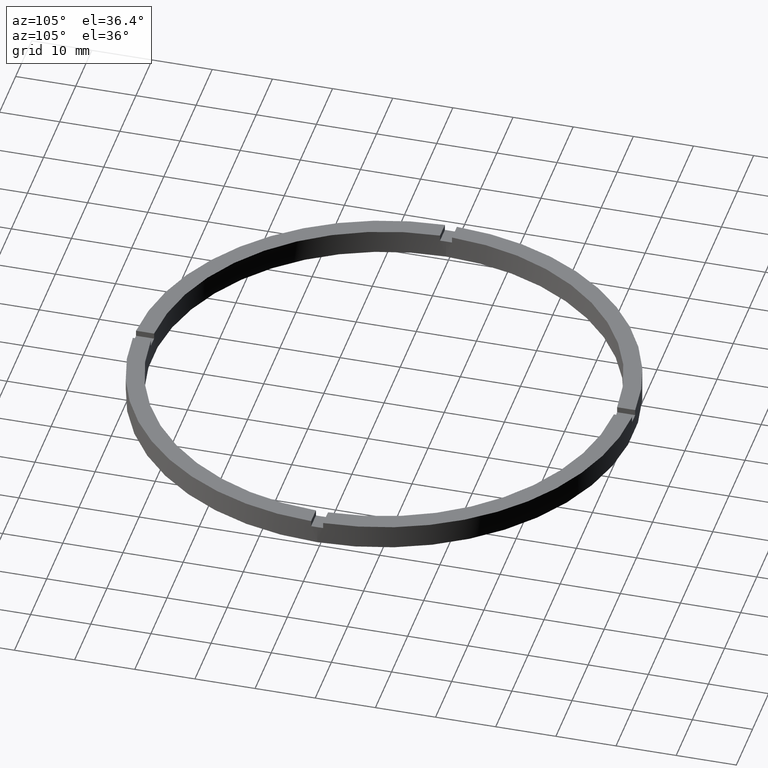
[diagram: clean part render]
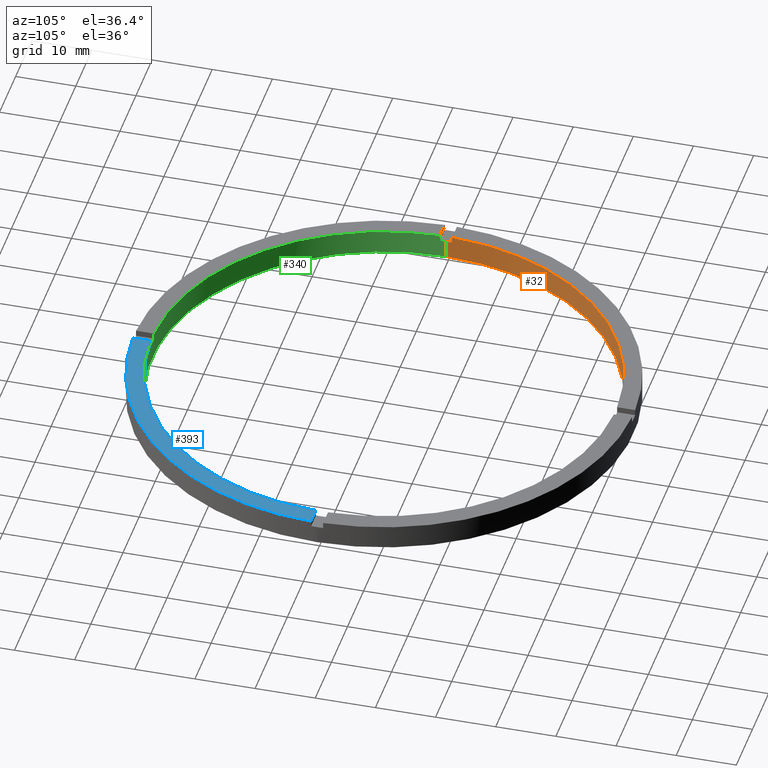
[diagram: same view with three faces highlighted in distinct colors, each labeled with its STEP entity id]
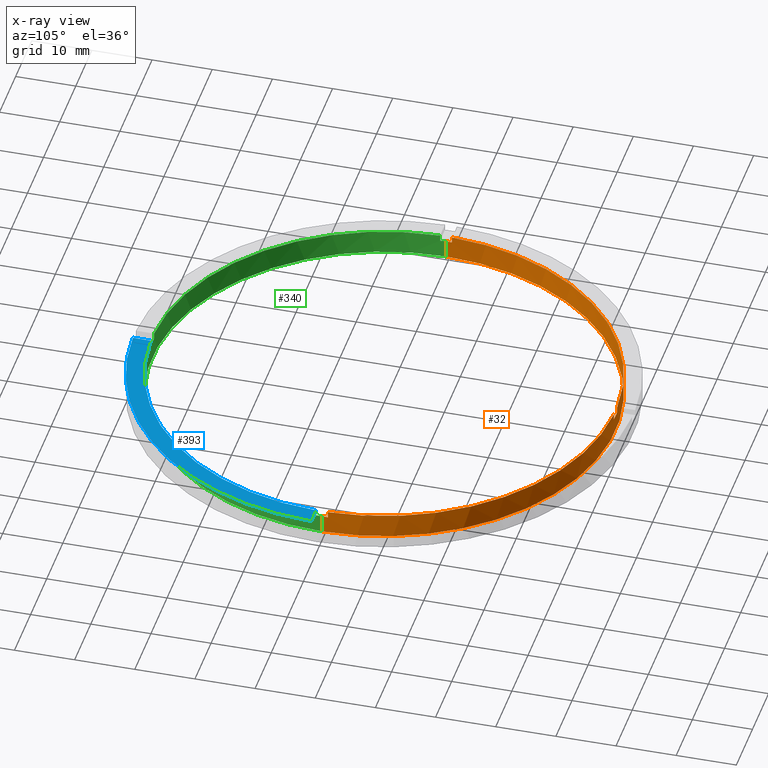
[diagram: x-ray of the same camera — body ghosted, the three highlighted faces saturated]
A machine part, auxiliary view with three faces highlighted in distinct colors.
The next image is the same camera in x-ray (body ghosted, the three faces saturated) — at least one of them is partly hidden behind the body in this view.
Their STEP definitions:

[orange] entity #32 — the highlighted cylindrical surface (partial cylindrical patch) has radius 38.5 mm, axis along (-0, -0, -1).
#7 = DIRECTION ( 'NONE',  ( -0.000000000000000000, -0.000000000000000000, -1.000000000000000000 ) ) ;
#8 = AXIS2_PLACEMENT_3D ( 'NONE', #73, #270, #739 ) ;
#18 = AXIS2_PLACEMENT_3D ( 'NONE', #46, #301, #646 ) ;
#26 = CARTESIAN_POINT ( 'NONE',  ( 38.50000000000000000, 4.714890176717309515E-15, 4.000000000000000000 ) ) ;
#32 = ADVANCED_FACE ( 'NONE', ( #428 ), #172, .F. ) ;
#34 = VERTEX_POINT ( 'NONE', #128 ) ;
#46 = CARTESIAN_POINT ( 'NONE',  ( 0.000000000000000000, 0.000000000000000000, 3.000000000000000000 ) ) ;
#48 = EDGE_CURVE ( 'NONE', #556, #34, #173, .T. ) ;
#60 = CARTESIAN_POINT ( 'NONE',  ( 0.000000000000000000, 0.000000000000000000, 0.000000000000000000 ) ) ;
#61 = CARTESIAN_POINT ( 'NONE',  ( 38.48701079585163853, 0.9999999999998432365, 3.000000000000000000 ) ) ;
#62 = CARTESIAN_POINT ( 'NONE',  ( -38.48701079585163143, 0.9999999999999715783, 4.000000000000000000 ) ) ;
#69 = EDGE_CURVE ( 'NONE', #554, #529, #684, .T. ) ;
#73 = CARTESIAN_POINT ( 'NONE',  ( 0.000000000000000000, 0.000000000000000000, 3.000000000000000000 ) ) ;
#75 = EDGE_CURVE ( 'NONE', #556, #297, #691, .T. ) ;
#78 = DIRECTION ( 'NONE',  ( -1.000000000000000000, 0.000000000000000000, 0.000000000000000000 ) ) ;
#124 = EDGE_CURVE ( 'NONE', #554, #300, #204, .T. ) ;
#128 = CARTESIAN_POINT ( 'NONE',  ( 38.50000000000000000, 4.714890176717309515E-15, 0.000000000000000000 ) ) ;
#129 = CARTESIAN_POINT ( 'NONE',  ( 38.50000000000000000, 4.714890176717309515E-15, 3.000000000000000000 ) ) ;
#136 = DIRECTION ( 'NONE',  ( 0.000000000000000000, 0.000000000000000000, 1.000000000000000000 ) ) ;
#138 = EDGE_CURVE ( 'NONE', #34, #290, #453, .T. ) ;
#142 = CARTESIAN_POINT ( 'NONE',  ( 0.9999999999999742428, 38.48701079585163143, 4.000000000000000000 ) ) ;
#145 = AXIS2_PLACEMENT_3D ( 'NONE', #60, #480, #303 ) ;
#154 = ORIENTED_EDGE ( 'NONE', *, *, #473, .F. ) ;
#172 = CYLINDRICAL_SURFACE ( 'NONE', #657, 38.50000000000000000 ) ;
#173 = LINE ( 'NONE', #26, #408 ) ;
#186 = CARTESIAN_POINT ( 'NONE',  ( -38.48701079585163143, 0.9999999999999715783, 4.000000000000000000 ) ) ;
#187 = VECTOR ( 'NONE', #582, 1000.000000000000000 ) ;
#189 = CARTESIAN_POINT ( 'NONE',  ( 38.48701079585163853, 0.9999999999998432365, 4.000000000000000000 ) ) ;
#196 = EDGE_CURVE ( 'NONE', #525, #300, #715, .T. ) ;
#198 = ORIENTED_EDGE ( 'NONE', *, *, #561, .T. ) ;
#204 = CIRCLE ( 'NONE', #424, 38.50000000000000000 ) ;
#213 = VECTOR ( 'NONE', #7, 1000.000000000000000 ) ;
#234 = ORIENTED_EDGE ( 'NONE', *, *, #138, .F. ) ;
#243 = CIRCLE ( 'NONE', #18, 38.50000000000000000 ) ;
#252 = ORIENTED_EDGE ( 'NONE', *, *, #75, .T. ) ;
#253 = ORIENTED_EDGE ( 'NONE', *, *, #124, .T. ) ;
#261 = VERTEX_POINT ( 'NONE', #474 ) ;
#263 = ORIENTED_EDGE ( 'NONE', *, *, #48, .F. ) ;
#270 = DIRECTION ( 'NONE',  ( 0.000000000000000000, 0.000000000000000000, 1.000000000000000000 ) ) ;
#277 = VERTEX_POINT ( 'NONE', #637 ) ;
#279 = DIRECTION ( 'NONE',  ( 0.000000000000000000, 0.000000000000000000, 1.000000000000000000 ) ) ;
#290 = VERTEX_POINT ( 'NONE', #392 ) ;
#292 = CARTESIAN_POINT ( 'NONE',  ( 0.9999999999999742428, 38.48701079585163143, 4.000000000000000000 ) ) ;
#296 = CARTESIAN_POINT ( 'NONE',  ( -1.000000000000025757, 38.48701079585163143, 3.000000000000000000 ) ) ;
#297 = VERTEX_POINT ( 'NONE', #61 ) ;
#300 = VERTEX_POINT ( 'NONE', #296 ) ;
#301 = DIRECTION ( 'NONE',  ( 0.000000000000000000, 0.000000000000000000, 1.000000000000000000 ) ) ;
#303 = DIRECTION ( 'NONE',  ( 1.000000000000000000, 0.000000000000000000, 0.000000000000000000 ) ) ;
#305 = CARTESIAN_POINT ( 'NONE',  ( -1.000000000000025757, 38.48701079585163143, 4.000000000000000000 ) ) ;
#307 = CARTESIAN_POINT ( 'NONE',  ( 0.000000000000000000, 0.000000000000000000, 3.000000000000000000 ) ) ;
#311 = CARTESIAN_POINT ( 'NONE',  ( 0.000000000000000000, 0.000000000000000000, 4.000000000000000000 ) ) ;
#323 = DIRECTION ( 'NONE',  ( 1.000000000000000000, 0.000000000000000000, 0.000000000000000000 ) ) ;
#325 = DIRECTION ( 'NONE',  ( 1.000000000000000000, 0.000000000000000000, 0.000000000000000000 ) ) ;
#326 = AXIS2_PLACEMENT_3D ( 'NONE', #445, #279, #323 ) ;
#347 = VECTOR ( 'NONE', #593, 1000.000000000000000 ) ;
#381 = AXIS2_PLACEMENT_3D ( 'NONE', #764, #136, #325 ) ;
#391 = DIRECTION ( 'NONE',  ( 1.000000000000000000, 0.000000000000000000, 0.000000000000000000 ) ) ;
#392 = CARTESIAN_POINT ( 'NONE',  ( -38.50000000000000000, 0.000000000000000000, 0.000000000000000000 ) ) ;
#408 = VECTOR ( 'NONE', #760, 1000.000000000000000 ) ;
#409 = VECTOR ( 'NONE', #728, 1000.000000000000000 ) ;
#419 = ORIENTED_EDGE ( 'NONE', *, *, #682, .F. ) ;
#424 = AXIS2_PLACEMENT_3D ( 'NONE', #307, #710, #391 ) ;
#428 = FACE_OUTER_BOUND ( 'NONE', #579, .T. ) ;
#445 = CARTESIAN_POINT ( 'NONE',  ( 0.000000000000000000, 0.000000000000000000, 4.000000000000000000 ) ) ;
#453 = CIRCLE ( 'NONE', #145, 38.50000000000000000 ) ;
#472 = LINE ( 'NONE', #62, #347 ) ;
#473 = EDGE_CURVE ( 'NONE', #277, #297, #705, .T. ) ;
#474 = CARTESIAN_POINT ( 'NONE',  ( -38.50000000000000000, 0.000000000000000000, 3.000000000000000000 ) ) ;
#476 = ORIENTED_EDGE ( 'NONE', *, *, #606, .T. ) ;
#480 = DIRECTION ( 'NONE',  ( 0.000000000000000000, 0.000000000000000000, 1.000000000000000000 ) ) ;
#492 = CIRCLE ( 'NONE', #326, 38.50000000000000000 ) ;
#502 = LINE ( 'NONE', #718, #766 ) ;
#524 = CARTESIAN_POINT ( 'NONE',  ( 0.9999999999999742428, 38.48701079585163143, 3.000000000000000000 ) ) ;
#525 = VERTEX_POINT ( 'NONE', #664 ) ;
#529 = VERTEX_POINT ( 'NONE', #292 ) ;
#532 = CARTESIAN_POINT ( 'NONE',  ( -38.48701079585163143, 0.9999999999999715783, 3.000000000000000000 ) ) ;
#549 = VERTEX_POINT ( 'NONE', #532 ) ;
#554 = VERTEX_POINT ( 'NONE', #524 ) ;
#556 = VERTEX_POINT ( 'NONE', #129 ) ;
#561 = EDGE_CURVE ( 'NONE', #525, #754, #492, .T. ) ;
#562 = ORIENTED_EDGE ( 'NONE', *, *, #653, .T. ) ;
#579 = EDGE_LOOP ( 'NONE', ( #263, #252, #154, #773, #717, #253, #782, #198, #419, #476, #562, #234 ) ) ;
#580 = DIRECTION ( 'NONE',  ( -0.000000000000000000, -0.000000000000000000, -1.000000000000000000 ) ) ;
#582 = DIRECTION ( 'NONE',  ( -0.000000000000000000, -0.000000000000000000, -1.000000000000000000 ) ) ;
#593 = DIRECTION ( 'NONE',  ( 0.000000000000000000, 0.000000000000000000, 1.000000000000000000 ) ) ;
#603 = EDGE_CURVE ( 'NONE', #277, #529, #755, .T. ) ;
#606 = EDGE_CURVE ( 'NONE', #549, #261, #243, .T. ) ;
#637 = CARTESIAN_POINT ( 'NONE',  ( 38.48701079585163853, 0.9999999999998432365, 4.000000000000000000 ) ) ;
#646 = DIRECTION ( 'NONE',  ( 1.000000000000000000, 0.000000000000000000, 0.000000000000000000 ) ) ;
#653 = EDGE_CURVE ( 'NONE', #261, #290, #502, .T. ) ;
#657 = AXIS2_PLACEMENT_3D ( 'NONE', #311, #662, #78 ) ;
#662 = DIRECTION ( 'NONE',  ( -0.000000000000000000, -0.000000000000000000, -1.000000000000000000 ) ) ;
#664 = CARTESIAN_POINT ( 'NONE',  ( -1.000000000000025757, 38.48701079585163143, 4.000000000000000000 ) ) ;
#682 = EDGE_CURVE ( 'NONE', #549, #754, #472, .T. ) ;
#684 = LINE ( 'NONE', #142, #409 ) ;
#691 = CIRCLE ( 'NONE', #8, 38.50000000000000000 ) ;
#705 = LINE ( 'NONE', #189, #187 ) ;
#710 = DIRECTION ( 'NONE',  ( 0.000000000000000000, -0.000000000000000000, 1.000000000000000000 ) ) ;
#715 = LINE ( 'NONE', #305, #213 ) ;
#717 = ORIENTED_EDGE ( 'NONE', *, *, #69, .F. ) ;
#718 = CARTESIAN_POINT ( 'NONE',  ( -38.50000000000000000, 0.000000000000000000, 4.000000000000000000 ) ) ;
#728 = DIRECTION ( 'NONE',  ( 0.000000000000000000, 0.000000000000000000, 1.000000000000000000 ) ) ;
#739 = DIRECTION ( 'NONE',  ( 1.000000000000000000, 0.000000000000000000, 0.000000000000000000 ) ) ;
#754 = VERTEX_POINT ( 'NONE', #186 ) ;
#755 = CIRCLE ( 'NONE', #381, 38.50000000000000000 ) ;
#760 = DIRECTION ( 'NONE',  ( -0.000000000000000000, -0.000000000000000000, -1.000000000000000000 ) ) ;
#764 = CARTESIAN_POINT ( 'NONE',  ( 0.000000000000000000, 0.000000000000000000, 4.000000000000000000 ) ) ;
#766 = VECTOR ( 'NONE', #580, 1000.000000000000000 ) ;
#773 = ORIENTED_EDGE ( 'NONE', *, *, #603, .T. ) ;
#782 = ORIENTED_EDGE ( 'NONE', *, *, #196, .F. ) ;

[blue] entity #393 — the highlighted planar face has unit normal (0, 0, 1).
#40 = CARTESIAN_POINT ( 'NONE',  ( 0.9999999999998406830, -38.48701079585163853, 4.000000000000000000 ) ) ;
#55 = CARTESIAN_POINT ( 'NONE',  ( 0.000000000000000000, 0.000000000000000000, 4.000000000000000000 ) ) ;
#125 = DIRECTION ( 'NONE',  ( 1.000000000000000000, 0.000000000000000000, -0.000000000000000000 ) ) ;
#146 = DIRECTION ( 'NONE',  ( 0.000000000000000000, 0.000000000000000000, 1.000000000000000000 ) ) ;
#151 = CARTESIAN_POINT ( 'NONE',  ( 38.48701079585163143, -1.000000000000156763, 4.000000000000000000 ) ) ;
#158 = ORIENTED_EDGE ( 'NONE', *, *, #546, .F. ) ;
#191 = EDGE_CURVE ( 'NONE', #527, #547, #450, .T. ) ;
#205 = CIRCLE ( 'NONE', #609, 41.50000000000000000 ) ;
#230 = CIRCLE ( 'NONE', #652, 38.50000000000000000 ) ;
#255 = DIRECTION ( 'NONE',  ( -1.301042606982605074E-16, 1.000000000000000000, -0.000000000000000000 ) ) ;
#287 = EDGE_LOOP ( 'NONE', ( #560, #158, #695, #405 ) ) ;
#312 = CARTESIAN_POINT ( 'NONE',  ( 31.49999999999999289, -1.000000000000157430, 4.000000000000000000 ) ) ;
#332 = CARTESIAN_POINT ( 'NONE',  ( 0.9999999999998411271, -41.48795005781800427, 4.000000000000000000 ) ) ;
#346 = EDGE_CURVE ( 'NONE', #527, #555, #205, .T. ) ;
#383 = DIRECTION ( 'NONE',  ( 0.000000000000000000, 0.000000000000000000, 1.000000000000000000 ) ) ;
#393 = ADVANCED_FACE ( 'NONE', ( #704 ), #685, .T. ) ;
#396 = EDGE_CURVE ( 'NONE', #776, #555, #463, .T. ) ;
#405 = ORIENTED_EDGE ( 'NONE', *, *, #346, .T. ) ;
#425 = DIRECTION ( 'NONE',  ( 0.000000000000000000, 0.000000000000000000, 1.000000000000000000 ) ) ;
#433 = DIRECTION ( 'NONE',  ( 1.000000000000000000, 0.000000000000000000, 0.000000000000000000 ) ) ;
#450 = LINE ( 'NONE', #569, #741 ) ;
#463 = LINE ( 'NONE', #312, #720 ) ;
#527 = VERTEX_POINT ( 'NONE', #332 ) ;
#546 = EDGE_CURVE ( 'NONE', #547, #776, #230, .T. ) ;
#547 = VERTEX_POINT ( 'NONE', #40 ) ;
#555 = VERTEX_POINT ( 'NONE', #592 ) ;
#560 = ORIENTED_EDGE ( 'NONE', *, *, #396, .F. ) ;
#569 = CARTESIAN_POINT ( 'NONE',  ( 0.9999999999998397948, -31.50000000000018119, 4.000000000000000000 ) ) ;
#592 = CARTESIAN_POINT ( 'NONE',  ( 41.48795005781799006, -1.000000000000156763, 4.000000000000000000 ) ) ;
#602 = DIRECTION ( 'NONE',  ( 1.000000000000000000, 0.000000000000000000, 0.000000000000000000 ) ) ;
#609 = AXIS2_PLACEMENT_3D ( 'NONE', #55, #146, #602 ) ;
#625 = DIRECTION ( 'NONE',  ( 1.000000000000000000, 6.505213034913025371E-17, 0.000000000000000000 ) ) ;
#633 = CARTESIAN_POINT ( 'NONE',  ( 0.000000000000000000, 0.000000000000000000, 4.000000000000000000 ) ) ;
#652 = AXIS2_PLACEMENT_3D ( 'NONE', #633, #383, #433 ) ;
#685 = PLANE ( 'NONE',  #736 ) ;
#695 = ORIENTED_EDGE ( 'NONE', *, *, #191, .F. ) ;
#704 = FACE_OUTER_BOUND ( 'NONE', #287, .T. ) ;
#720 = VECTOR ( 'NONE', #625, 1000.000000000000000 ) ;
#736 = AXIS2_PLACEMENT_3D ( 'NONE', #777, #425, #125 ) ;
#741 = VECTOR ( 'NONE', #255, 1000.000000000000000 ) ;
#776 = VERTEX_POINT ( 'NONE', #151 ) ;
#777 = CARTESIAN_POINT ( 'NONE',  ( 0.000000000000000000, 0.000000000000000000, 4.000000000000000000 ) ) ;

[green] entity #340 — the highlighted cylindrical surface (partial cylindrical patch) has radius 38.5 mm, axis along (-0, -0, -1).
#1 = VERTEX_POINT ( 'NONE', #188 ) ;
#5 = ORIENTED_EDGE ( 'NONE', *, *, #576, .F. ) ;
#9 = ORIENTED_EDGE ( 'NONE', *, *, #248, .F. ) ;
#21 = VERTEX_POINT ( 'NONE', #511 ) ;
#26 = CARTESIAN_POINT ( 'NONE',  ( 38.50000000000000000, 4.714890176717309515E-15, 4.000000000000000000 ) ) ;
#33 = ORIENTED_EDGE ( 'NONE', *, *, #343, .T. ) ;
#34 = VERTEX_POINT ( 'NONE', #128 ) ;
#40 = CARTESIAN_POINT ( 'NONE',  ( 0.9999999999998406830, -38.48701079585163853, 4.000000000000000000 ) ) ;
#42 = ORIENTED_EDGE ( 'NONE', *, *, #546, .T. ) ;
#44 = ORIENTED_EDGE ( 'NONE', *, *, #653, .F. ) ;
#48 = EDGE_CURVE ( 'NONE', #556, #34, #173, .T. ) ;
#84 = CARTESIAN_POINT ( 'NONE',  ( 0.000000000000000000, 0.000000000000000000, 4.000000000000000000 ) ) ;
#90 = EDGE_CURVE ( 'NONE', #557, #483, #464, .T. ) ;
#97 = DIRECTION ( 'NONE',  ( 0.000000000000000000, 0.000000000000000000, 1.000000000000000000 ) ) ;
#114 = VERTEX_POINT ( 'NONE', #693 ) ;
#121 = AXIS2_PLACEMENT_3D ( 'NONE', #400, #496, #245 ) ;
#123 = AXIS2_PLACEMENT_3D ( 'NONE', #337, #452, #233 ) ;
#128 = CARTESIAN_POINT ( 'NONE',  ( 38.50000000000000000, 4.714890176717309515E-15, 0.000000000000000000 ) ) ;
#129 = CARTESIAN_POINT ( 'NONE',  ( 38.50000000000000000, 4.714890176717309515E-15, 3.000000000000000000 ) ) ;
#137 = CARTESIAN_POINT ( 'NONE',  ( -1.000000000000159428, -38.48701079585163143, 4.000000000000000000 ) ) ;
#151 = CARTESIAN_POINT ( 'NONE',  ( 38.48701079585163143, -1.000000000000156763, 4.000000000000000000 ) ) ;
#153 = ORIENTED_EDGE ( 'NONE', *, *, #486, .T. ) ;
#157 = DIRECTION ( 'NONE',  ( -0.000000000000000000, -0.000000000000000000, -1.000000000000000000 ) ) ;
#173 = LINE ( 'NONE', #26, #408 ) ;
#179 = ORIENTED_EDGE ( 'NONE', *, *, #291, .T. ) ;
#184 = CYLINDRICAL_SURFACE ( 'NONE', #442, 38.50000000000000000 ) ;
#188 = CARTESIAN_POINT ( 'NONE',  ( 0.9999999999998406830, -38.48701079585163853, 3.000000000000000000 ) ) ;
#190 = VECTOR ( 'NONE', #157, 1000.000000000000000 ) ;
#202 = CIRCLE ( 'NONE', #123, 38.50000000000000000 ) ;
#203 = CARTESIAN_POINT ( 'NONE',  ( -1.000000000000159428, -38.48701079585163143, 3.000000000000000000 ) ) ;
#210 = EDGE_CURVE ( 'NONE', #290, #34, #440, .T. ) ;
#224 = CIRCLE ( 'NONE', #749, 38.50000000000000000 ) ;
#225 = DIRECTION ( 'NONE',  ( -0.000000000000000000, -0.000000000000000000, -1.000000000000000000 ) ) ;
#230 = CIRCLE ( 'NONE', #652, 38.50000000000000000 ) ;
#233 = DIRECTION ( 'NONE',  ( 1.000000000000000000, 0.000000000000000000, 0.000000000000000000 ) ) ;
#242 = VECTOR ( 'NONE', #389, 1000.000000000000000 ) ;
#245 = DIRECTION ( 'NONE',  ( 1.000000000000000000, 0.000000000000000000, 0.000000000000000000 ) ) ;
#246 = VECTOR ( 'NONE', #683, 1000.000000000000000 ) ;
#248 = EDGE_CURVE ( 'NONE', #547, #1, #702, .T. ) ;
#259 = ORIENTED_EDGE ( 'NONE', *, *, #48, .T. ) ;
#260 = CARTESIAN_POINT ( 'NONE',  ( -1.000000000000159428, -38.48701079585163143, 4.000000000000000000 ) ) ;
#261 = VERTEX_POINT ( 'NONE', #474 ) ;
#274 = ORIENTED_EDGE ( 'NONE', *, *, #616, .F. ) ;
#281 = VERTEX_POINT ( 'NONE', #388 ) ;
#283 = EDGE_LOOP ( 'NONE', ( #33, #259, #559, #44, #153, #5, #179, #402, #421, #9, #42, #274 ) ) ;
#284 = CARTESIAN_POINT ( 'NONE',  ( 0.000000000000000000, 0.000000000000000000, 3.000000000000000000 ) ) ;
#290 = VERTEX_POINT ( 'NONE', #392 ) ;
#291 = EDGE_CURVE ( 'NONE', #21, #483, #731, .T. ) ;
#330 = DIRECTION ( 'NONE',  ( 1.000000000000000000, 0.000000000000000000, 0.000000000000000000 ) ) ;
#335 = AXIS2_PLACEMENT_3D ( 'NONE', #84, #97, #781 ) ;
#337 = CARTESIAN_POINT ( 'NONE',  ( 0.000000000000000000, 0.000000000000000000, 3.000000000000000000 ) ) ;
#338 = CARTESIAN_POINT ( 'NONE',  ( 38.48701079585163143, -1.000000000000156763, 4.000000000000000000 ) ) ;
#340 = ADVANCED_FACE ( 'NONE', ( #721 ), #184, .F. ) ;
#343 = EDGE_CURVE ( 'NONE', #281, #556, #202, .T. ) ;
#377 = DIRECTION ( 'NONE',  ( 0.000000000000000000, 0.000000000000000000, 1.000000000000000000 ) ) ;
#382 = CARTESIAN_POINT ( 'NONE',  ( 0.000000000000000000, 0.000000000000000000, 3.000000000000000000 ) ) ;
#383 = DIRECTION ( 'NONE',  ( 0.000000000000000000, 0.000000000000000000, 1.000000000000000000 ) ) ;
#385 = CARTESIAN_POINT ( 'NONE',  ( -38.48701079585163143, -1.000000000000028422, 4.000000000000000000 ) ) ;
#388 = CARTESIAN_POINT ( 'NONE',  ( 38.48701079585163143, -1.000000000000156763, 3.000000000000000000 ) ) ;
#389 = DIRECTION ( 'NONE',  ( 0.000000000000000000, 0.000000000000000000, 1.000000000000000000 ) ) ;
#392 = CARTESIAN_POINT ( 'NONE',  ( -38.50000000000000000, 0.000000000000000000, 0.000000000000000000 ) ) ;
#395 = CARTESIAN_POINT ( 'NONE',  ( 0.9999999999998406830, -38.48701079585163853, 4.000000000000000000 ) ) ;
#400 = CARTESIAN_POINT ( 'NONE',  ( 0.000000000000000000, 0.000000000000000000, 0.000000000000000000 ) ) ;
#402 = ORIENTED_EDGE ( 'NONE', *, *, #90, .F. ) ;
#408 = VECTOR ( 'NONE', #760, 1000.000000000000000 ) ;
#421 = ORIENTED_EDGE ( 'NONE', *, *, #422, .T. ) ;
#422 = EDGE_CURVE ( 'NONE', #557, #1, #224, .T. ) ;
#432 = DIRECTION ( 'NONE',  ( 1.000000000000000000, 0.000000000000000000, 0.000000000000000000 ) ) ;
#433 = DIRECTION ( 'NONE',  ( 1.000000000000000000, 0.000000000000000000, 0.000000000000000000 ) ) ;
#440 = CIRCLE ( 'NONE', #121, 38.50000000000000000 ) ;
#442 = AXIS2_PLACEMENT_3D ( 'NONE', #588, #225, #774 ) ;
#452 = DIRECTION ( 'NONE',  ( 0.000000000000000000, 0.000000000000000000, 1.000000000000000000 ) ) ;
#464 = LINE ( 'NONE', #260, #716 ) ;
#474 = CARTESIAN_POINT ( 'NONE',  ( -38.50000000000000000, 0.000000000000000000, 3.000000000000000000 ) ) ;
#483 = VERTEX_POINT ( 'NONE', #137 ) ;
#485 = LINE ( 'NONE', #385, #246 ) ;
#486 = EDGE_CURVE ( 'NONE', #261, #114, #489, .T. ) ;
#489 = CIRCLE ( 'NONE', #583, 38.50000000000000000 ) ;
#495 = LINE ( 'NONE', #338, #242 ) ;
#496 = DIRECTION ( 'NONE',  ( 0.000000000000000000, 0.000000000000000000, 1.000000000000000000 ) ) ;
#502 = LINE ( 'NONE', #718, #766 ) ;
#511 = CARTESIAN_POINT ( 'NONE',  ( -38.48701079585163143, -1.000000000000028422, 4.000000000000000000 ) ) ;
#546 = EDGE_CURVE ( 'NONE', #547, #776, #230, .T. ) ;
#547 = VERTEX_POINT ( 'NONE', #40 ) ;
#556 = VERTEX_POINT ( 'NONE', #129 ) ;
#557 = VERTEX_POINT ( 'NONE', #203 ) ;
#559 = ORIENTED_EDGE ( 'NONE', *, *, #210, .F. ) ;
#572 = DIRECTION ( 'NONE',  ( -0.000000000000000000, 0.000000000000000000, 1.000000000000000000 ) ) ;
#576 = EDGE_CURVE ( 'NONE', #21, #114, #485, .T. ) ;
#580 = DIRECTION ( 'NONE',  ( -0.000000000000000000, -0.000000000000000000, -1.000000000000000000 ) ) ;
#583 = AXIS2_PLACEMENT_3D ( 'NONE', #284, #377, #432 ) ;
#588 = CARTESIAN_POINT ( 'NONE',  ( 0.000000000000000000, 0.000000000000000000, 4.000000000000000000 ) ) ;
#616 = EDGE_CURVE ( 'NONE', #281, #776, #495, .T. ) ;
#633 = CARTESIAN_POINT ( 'NONE',  ( 0.000000000000000000, 0.000000000000000000, 4.000000000000000000 ) ) ;
#652 = AXIS2_PLACEMENT_3D ( 'NONE', #633, #383, #433 ) ;
#653 = EDGE_CURVE ( 'NONE', #261, #290, #502, .T. ) ;
#656 = DIRECTION ( 'NONE',  ( 0.000000000000000000, 0.000000000000000000, 1.000000000000000000 ) ) ;
#683 = DIRECTION ( 'NONE',  ( -0.000000000000000000, -0.000000000000000000, -1.000000000000000000 ) ) ;
#693 = CARTESIAN_POINT ( 'NONE',  ( -38.48701079585163143, -1.000000000000028422, 3.000000000000000000 ) ) ;
#702 = LINE ( 'NONE', #395, #190 ) ;
#716 = VECTOR ( 'NONE', #656, 1000.000000000000000 ) ;
#718 = CARTESIAN_POINT ( 'NONE',  ( -38.50000000000000000, 0.000000000000000000, 4.000000000000000000 ) ) ;
#721 = FACE_OUTER_BOUND ( 'NONE', #283, .T. ) ;
#731 = CIRCLE ( 'NONE', #335, 38.50000000000000000 ) ;
#749 = AXIS2_PLACEMENT_3D ( 'NONE', #382, #572, #330 ) ;
#760 = DIRECTION ( 'NONE',  ( -0.000000000000000000, -0.000000000000000000, -1.000000000000000000 ) ) ;
#766 = VECTOR ( 'NONE', #580, 1000.000000000000000 ) ;
#774 = DIRECTION ( 'NONE',  ( -1.000000000000000000, 0.000000000000000000, 0.000000000000000000 ) ) ;
#776 = VERTEX_POINT ( 'NONE', #151 ) ;
#781 = DIRECTION ( 'NONE',  ( 1.000000000000000000, 0.000000000000000000, 0.000000000000000000 ) ) ;